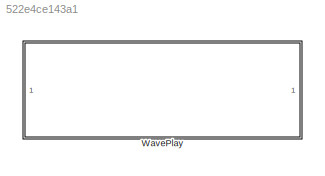
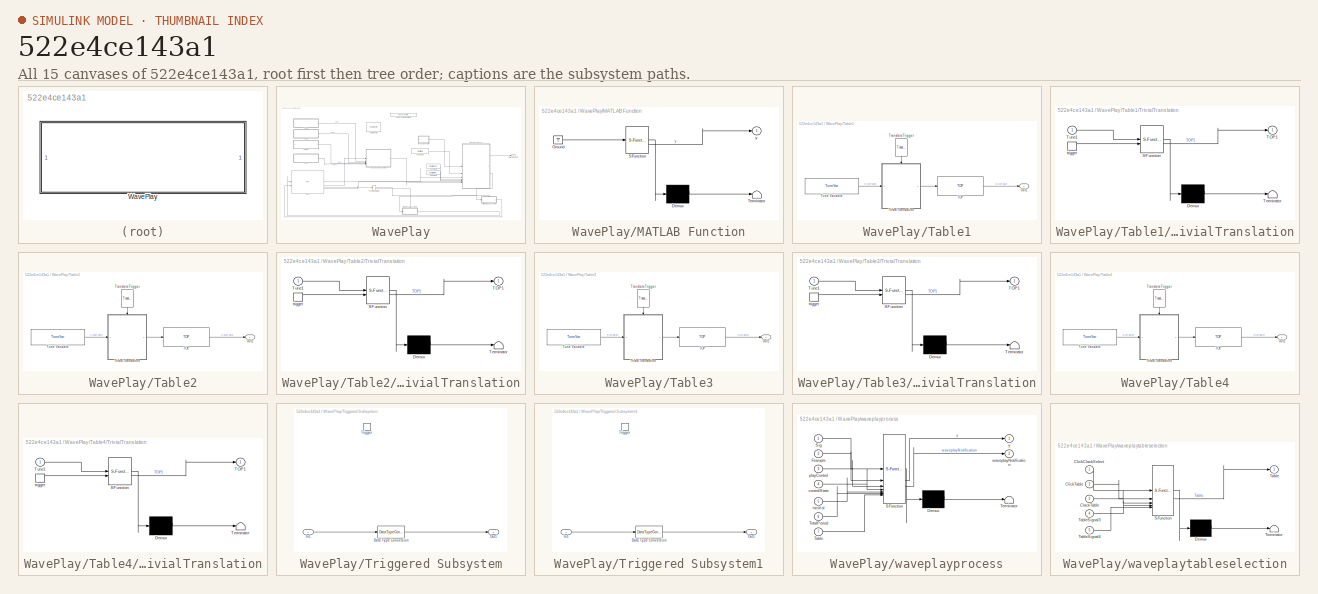
[diagram: thumbnail index - all 15 canvases of the model, root first then tree order]
MODEL slx_522e4ce143a1
KIND library
CONFIG AbsTol = auto
CONFIG EnableMultiTasking = off
CONFIG FixedStep = auto
CONFIG MaxStep = auto
CONFIG MinStep = auto
CONFIG RelTol = 1e-3
CONFIG SampleTimeConstraint = Unconstrained
CONFIG SolverName = VariableStepAuto
CONFIG StartTime = 0.0
CONFIG StopTime = 10.0
BLOCK [SubSystem] WavePlay
BLOCK [Constant] WavePlay/Constant1
  OutDataTypeStr = single
  Value = Config.ControlState
BLOCK [Constant] WavePlay/Constant2
  OutDataTypeStr = single
  Value = Config.MinVol
BLOCK [Constant] WavePlay/Constant3
  Value = Config.Fs
BLOCK [Reference] WavePlay/FeaturePath  REF=FeaturePath/FeaturePath
  SourceBlock = FeaturePath/FeaturePath
  SourceProductName = Bose Talaria
  SourceType = Talaria Feature Path
BLOCK [FunctionCallSplit] WavePlay/Function-Call Split
  IconShape = distinctive
  NumOutputPorts = 2
  OutputPortLayout = default
BLOCK [Reference] WavePlay/HandyDefaultConfigFile  REF=HandyTextFile/HandyTextFile
  SourceBlock = HandyTextFile/HandyTextFile
  SourceProductName = Bose Talaria
  SourceType = Talaria Handy Text File
BLOCK [SubSystem] WavePlay/MATLAB Function
  ErrorFcn = Stateflow.Translate.translate
  PermitHierarchicalResolution = ExplicitOnly
  SFBlockType = MATLAB Function
  TreatAsAtomicUnit = on
BLOCK [Demux] WavePlay/MATLAB Function/ Demux 
  Outputs = 1
BLOCK [Ground] WavePlay/MATLAB Function/ Ground 
BLOCK [S-Function] WavePlay/MATLAB Function/ SFunction 
  EnableBusSupport = off
  FunctionName = sf_sfun
  Parameters = frameSize
  PortCounts = [1 2]
  SFcnIsStateOwnerBlock = off
  SFunctionDeploymentMode = off
  Tag = Stateflow S-Function 3
BLOCK [Terminator] WavePlay/MATLAB Function/ Terminator 
BLOCK [Outport] WavePlay/MATLAB Function/y
BLOCK [Reference] WavePlay/RTC  REF=RTC/RTC
  SourceBlock = RTC/RTC
  SourceProductName = Bose Talaria
  SourceType = Talaria RTC Receive
BLOCK [SubSystem] WavePlay/Table1
BLOCK [Outport] WavePlay/Table1/Out1
  VectorParamsAs1DForOutWhenUnconnected = off
BLOCK [Reference] WavePlay/Table1/TOP  REF=TOP/TOP
  SourceBlock = TOP/TOP
  SourceProductName = Bose Talaria
  SourceType = Talaria Target Overlay Parameter
BLOCK [Reference] WavePlay/Table1/TranslateTrigger  REF=TuneVar/TranslateTrigger
  NameLocation = right
  SourceBlock = TuneVar/TranslateTrigger
  SourceProductName = Bose Talaria
  SourceType = Talaria Translate Trigger
BLOCK [SubSystem] WavePlay/Table1/TrivialTranslation
  ErrorFcn = Stateflow.Translate.translate
  PermitHierarchicalResolution = ExplicitOnly
  SFBlockType = MATLAB Function
  TreatAsAtomicUnit = on
BLOCK [Demux] WavePlay/Table1/TrivialTranslation/ Demux 
  Outputs = 1
BLOCK [S-Function] WavePlay/Table1/TrivialTranslation/ SFunction 
  EnableBusSupport = off
  FunctionName = sf_sfun
  PortCounts = [2 2]
  SFcnIsStateOwnerBlock = off
  SFunctionDeploymentMode = off
  Tag = Stateflow S-Function 8
BLOCK [Terminator] WavePlay/Table1/TrivialTranslation/ Terminator 
BLOCK [Outport] WavePlay/Table1/TrivialTranslation/TOP1
  VectorParamsAs1DForOutWhenUnconnected = off
BLOCK [Inport] WavePlay/Table1/TrivialTranslation/Tune1
BLOCK [TriggerPort] WavePlay/Table1/TrivialTranslation/trigger
  ShowOutputPort = on
  StatesWhenEnabling = held
  TriggerType = function-call
  VariantControl = Variant
BLOCK [Reference] WavePlay/Table1/Tune Variable  REF=TuneVar/TuneVar
  SourceBlock = TuneVar/TuneVar
  SourceProductName = Bose Talaria
  SourceType = Talaria Tune Variable
BLOCK [SubSystem] WavePlay/Table2
BLOCK [Outport] WavePlay/Table2/Out1
  VectorParamsAs1DForOutWhenUnconnected = off
BLOCK [Reference] WavePlay/Table2/TOP  REF=TOP/TOP
  SourceBlock = TOP/TOP
  SourceProductName = Bose Talaria
  SourceType = Talaria Target Overlay Parameter
BLOCK [Reference] WavePlay/Table2/TranslateTrigger  REF=TuneVar/TranslateTrigger
  NameLocation = right
  SourceBlock = TuneVar/TranslateTrigger
  SourceProductName = Bose Talaria
  SourceType = Talaria Translate Trigger
BLOCK [SubSystem] WavePlay/Table2/TrivialTranslation
  ErrorFcn = Stateflow.Translate.translate
  PermitHierarchicalResolution = ExplicitOnly
  SFBlockType = MATLAB Function
  TreatAsAtomicUnit = on
BLOCK [Demux] WavePlay/Table2/TrivialTranslation/ Demux 
  Outputs = 1
BLOCK [S-Function] WavePlay/Table2/TrivialTranslation/ SFunction 
  EnableBusSupport = off
  FunctionName = sf_sfun
  PortCounts = [2 2]
  SFcnIsStateOwnerBlock = off
  SFunctionDeploymentMode = off
  Tag = Stateflow S-Function 4
BLOCK [Terminator] WavePlay/Table2/TrivialTranslation/ Terminator 
BLOCK [Outport] WavePlay/Table2/TrivialTranslation/TOP1
  VectorParamsAs1DForOutWhenUnconnected = off
BLOCK [Inport] WavePlay/Table2/TrivialTranslation/Tune1
BLOCK [TriggerPort] WavePlay/Table2/TrivialTranslation/trigger
  ShowOutputPort = on
  StatesWhenEnabling = held
  TriggerType = function-call
  VariantControl = Variant
BLOCK [Reference] WavePlay/Table2/Tune Variable  REF=TuneVar/TuneVar
  SourceBlock = TuneVar/TuneVar
  SourceProductName = Bose Talaria
  SourceType = Talaria Tune Variable
BLOCK [SubSystem] WavePlay/Table3
BLOCK [Outport] WavePlay/Table3/Out1
  VectorParamsAs1DForOutWhenUnconnected = off
BLOCK [Reference] WavePlay/Table3/TOP  REF=TOP/TOP
  SourceBlock = TOP/TOP
  SourceProductName = Bose Talaria
  SourceType = Talaria Target Overlay Parameter
BLOCK [Reference] WavePlay/Table3/TranslateTrigger  REF=TuneVar/TranslateTrigger
  NameLocation = right
  SourceBlock = TuneVar/TranslateTrigger
  SourceProductName = Bose Talaria
  SourceType = Talaria Translate Trigger
BLOCK [SubSystem] WavePlay/Table3/TrivialTranslation
  ErrorFcn = Stateflow.Translate.translate
  PermitHierarchicalResolution = ExplicitOnly
  SFBlockType = MATLAB Function
  TreatAsAtomicUnit = on
BLOCK [Demux] WavePlay/Table3/TrivialTranslation/ Demux 
  Outputs = 1
BLOCK [S-Function] WavePlay/Table3/TrivialTranslation/ SFunction 
  EnableBusSupport = off
  FunctionName = sf_sfun
  PortCounts = [2 2]
  SFcnIsStateOwnerBlock = off
  SFunctionDeploymentMode = off
  Tag = Stateflow S-Function 5
BLOCK [Terminator] WavePlay/Table3/TrivialTranslation/ Terminator 
BLOCK [Outport] WavePlay/Table3/TrivialTranslation/TOP1
  VectorParamsAs1DForOutWhenUnconnected = off
BLOCK [Inport] WavePlay/Table3/TrivialTranslation/Tune1
BLOCK [TriggerPort] WavePlay/Table3/TrivialTranslation/trigger
  ShowOutputPort = on
  StatesWhenEnabling = held
  TriggerType = function-call
  VariantControl = Variant
BLOCK [Reference] WavePlay/Table3/Tune Variable  REF=TuneVar/TuneVar
  SourceBlock = TuneVar/TuneVar
  SourceProductName = Bose Talaria
  SourceType = Talaria Tune Variable
BLOCK [SubSystem] WavePlay/Table4
BLOCK [Outport] WavePlay/Table4/Out1
  VectorParamsAs1DForOutWhenUnconnected = off
BLOCK [Reference] WavePlay/Table4/TOP  REF=TOP/TOP
  SourceBlock = TOP/TOP
  SourceProductName = Bose Talaria
  SourceType = Talaria Target Overlay Parameter
BLOCK [Reference] WavePlay/Table4/TranslateTrigger  REF=TuneVar/TranslateTrigger
  NameLocation = right
  SourceBlock = TuneVar/TranslateTrigger
  SourceProductName = Bose Talaria
  SourceType = Talaria Translate Trigger
BLOCK [SubSystem] WavePlay/Table4/TrivialTranslation
  ErrorFcn = Stateflow.Translate.translate
  PermitHierarchicalResolution = ExplicitOnly
  SFBlockType = MATLAB Function
  TreatAsAtomicUnit = on
BLOCK [Demux] WavePlay/Table4/TrivialTranslation/ Demux 
  Outputs = 1
BLOCK [S-Function] WavePlay/Table4/TrivialTranslation/ SFunction 
  EnableBusSupport = off
  FunctionName = sf_sfun
  PortCounts = [2 2]
  SFcnIsStateOwnerBlock = off
  SFunctionDeploymentMode = off
  Tag = Stateflow S-Function 6
BLOCK [Terminator] WavePlay/Table4/TrivialTranslation/ Terminator 
BLOCK [Outport] WavePlay/Table4/TrivialTranslation/TOP1
  VectorParamsAs1DForOutWhenUnconnected = off
BLOCK [Inport] WavePlay/Table4/TrivialTranslation/Tune1
BLOCK [TriggerPort] WavePlay/Table4/TrivialTranslation/trigger
  ShowOutputPort = on
  StatesWhenEnabling = held
  TriggerType = function-call
  VariantControl = Variant
BLOCK [Reference] WavePlay/Table4/Tune Variable  REF=TuneVar/TuneVar
  SourceBlock = TuneVar/TuneVar
  SourceProductName = Bose Talaria
  SourceType = Talaria Tune Variable
BLOCK [SubSystem] WavePlay/Triggered Subsystem
  TreatAsAtomicUnit = on
BLOCK [DataTypeConversion] WavePlay/Triggered Subsystem/Data Type Conversion
  OutDataTypeStr = uint32
  RndMeth = Floor
  SaturateOnIntegerOverflow = off
BLOCK [Inport] WavePlay/Triggered Subsystem/In1
BLOCK [Outport] WavePlay/Triggered Subsystem/Out1
BLOCK [TriggerPort] WavePlay/Triggered Subsystem/Trigger
  StatesWhenEnabling = held
  TriggerType = function-call
  VariantControl = Variant
BLOCK [SubSystem] WavePlay/Triggered Subsystem1
  TreatAsAtomicUnit = on
BLOCK [DataTypeConversion] WavePlay/Triggered Subsystem1/Data Type Conversion
  OutDataTypeStr = boolean
  RndMeth = Floor
  SaturateOnIntegerOverflow = off
BLOCK [Inport] WavePlay/Triggered Subsystem1/In1
BLOCK [Outport] WavePlay/Triggered Subsystem1/Out1
BLOCK [TriggerPort] WavePlay/Triggered Subsystem1/Trigger
  StatesWhenEnabling = held
  TriggerType = function-call
  VariantControl = Variant
BLOCK [Outport] WavePlay/WavePlayOut
  VectorParamsAs1DForOutWhenUnconnected = off
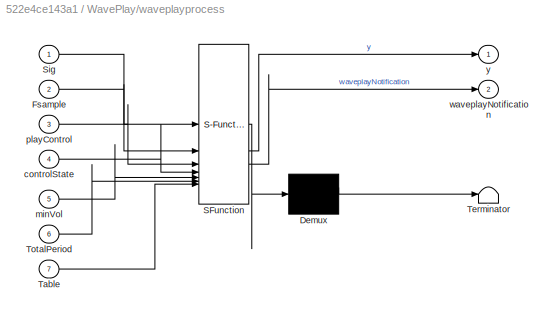
BLOCK [SubSystem] WavePlay/waveplayprocess
  ErrorFcn = Stateflow.Translate.translate
  PermitHierarchicalResolution = ExplicitOnly
  SFBlockType = MATLAB Function
  TreatAsAtomicUnit = on
BLOCK [Demux] WavePlay/waveplayprocess/ Demux 
  Outputs = 1
BLOCK [S-Function] WavePlay/waveplayprocess/ SFunction 
  EnableBusSupport = off
  FunctionName = sf_sfun
  PortCounts = [7 3]
  SFcnIsStateOwnerBlock = off
  SFunctionDeploymentMode = off
  Tag = Stateflow S-Function 2
BLOCK [Terminator] WavePlay/waveplayprocess/ Terminator 
BLOCK [Inport] WavePlay/waveplayprocess/Fsample
  Port = 2
BLOCK [Inport] WavePlay/waveplayprocess/Sig
BLOCK [Inport] WavePlay/waveplayprocess/Table
  Port = 7
BLOCK [Inport] WavePlay/waveplayprocess/TotalPeriod
  Port = 6
BLOCK [Inport] WavePlay/waveplayprocess/controlState
  Port = 4
BLOCK [Inport] WavePlay/waveplayprocess/minVol
  Port = 5
BLOCK [Inport] WavePlay/waveplayprocess/playControl
  Port = 3
BLOCK [Outport] WavePlay/waveplayprocess/waveplayNotification
  Port = 2
BLOCK [Outport] WavePlay/waveplayprocess/y
  VectorParamsAs1DForOutWhenUnconnected = off
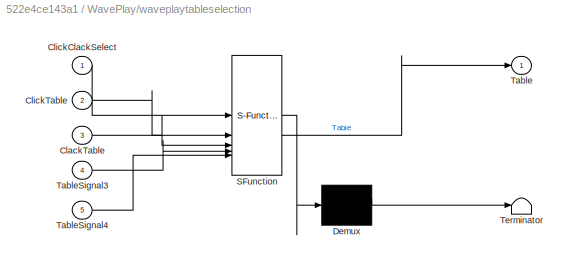
BLOCK [SubSystem] WavePlay/waveplaytableselection
  ErrorFcn = Stateflow.Translate.translate
  PermitHierarchicalResolution = ExplicitOnly
  SFBlockType = MATLAB Function
  TreatAsAtomicUnit = on
BLOCK [Demux] WavePlay/waveplaytableselection/ Demux 
  Outputs = 1
BLOCK [S-Function] WavePlay/waveplaytableselection/ SFunction 
  EnableBusSupport = off
  FunctionName = sf_sfun
  PortCounts = [5 2]
  SFcnIsStateOwnerBlock = off
  SFunctionDeploymentMode = off
  Tag = Stateflow S-Function 1
BLOCK [Terminator] WavePlay/waveplaytableselection/ Terminator 
BLOCK [Inport] WavePlay/waveplaytableselection/ClackTable
  Port = 3
BLOCK [Inport] WavePlay/waveplaytableselection/ClickClackSelect
BLOCK [Inport] WavePlay/waveplaytableselection/ClickTable
  Port = 2
BLOCK [Outport] WavePlay/waveplaytableselection/Table
BLOCK [Inport] WavePlay/waveplaytableselection/TableSignal3
  Port = 4
BLOCK [Inport] WavePlay/waveplaytableselection/TableSignal4
  Port = 5
LINE WavePlay/Constant1:1 -> WavePlay/waveplayprocess:4
LINE WavePlay/Constant2:1 -> WavePlay/waveplayprocess:5
LINE WavePlay/Constant3:1 -> WavePlay/waveplayprocess:2
LINE WavePlay/Function-Call Split:1 -> WavePlay/Triggered Subsystem:trigger
LINE WavePlay/Function-Call Split:2 -> WavePlay/Triggered Subsystem1:trigger
LINE WavePlay/MATLAB Function:1 -> WavePlay/waveplayprocess:1
LINE WavePlay/RTC:1 -> WavePlay/waveplayprocess:3
LINE WavePlay/RTC:2 -> WavePlay/waveplaytableselection:1
LINE WavePlay/RTC:3 -> WavePlay/waveplayprocess:6
LINE WavePlay/RTC:4 -> WavePlay/Function-Call Split:1
LINE WavePlay/Table1/TOP:1 -> WavePlay/Table1/Out1:1
LINE WavePlay/Table1/TranslateTrigger:1 -> WavePlay/Table1/TrivialTranslation:trigger
LINE WavePlay/Table1/TrivialTranslation:1 -> WavePlay/Table1/TOP:1
LINE WavePlay/Table1/Tune Variable:1 -> WavePlay/Table1/TrivialTranslation:1
LINE WavePlay/Table1:1 -> WavePlay/waveplaytableselection:2
LINE WavePlay/Table2/TOP:1 -> WavePlay/Table2/Out1:1
LINE WavePlay/Table2/TranslateTrigger:1 -> WavePlay/Table2/TrivialTranslation:trigger
LINE WavePlay/Table2/TrivialTranslation:1 -> WavePlay/Table2/TOP:1
LINE WavePlay/Table2/Tune Variable:1 -> WavePlay/Table2/TrivialTranslation:1
LINE WavePlay/Table2:1 -> WavePlay/waveplaytableselection:3
LINE WavePlay/Table3/TOP:1 -> WavePlay/Table3/Out1:1
LINE WavePlay/Table3/TranslateTrigger:1 -> WavePlay/Table3/TrivialTranslation:trigger
LINE WavePlay/Table3/TrivialTranslation:1 -> WavePlay/Table3/TOP:1
LINE WavePlay/Table3/Tune Variable:1 -> WavePlay/Table3/TrivialTranslation:1
LINE WavePlay/Table3:1 -> WavePlay/waveplaytableselection:4
LINE WavePlay/Table4/TOP:1 -> WavePlay/Table4/Out1:1
LINE WavePlay/Table4/TranslateTrigger:1 -> WavePlay/Table4/TrivialTranslation:trigger
LINE WavePlay/Table4/TrivialTranslation:1 -> WavePlay/Table4/TOP:1
LINE WavePlay/Table4/Tune Variable:1 -> WavePlay/Table4/TrivialTranslation:1
LINE WavePlay/Table4:1 -> WavePlay/waveplaytableselection:5
LINE WavePlay/Triggered Subsystem/Data Type Conversion:1 -> WavePlay/Triggered Subsystem/Out1:1
LINE WavePlay/Triggered Subsystem/In1:1 -> WavePlay/Triggered Subsystem/Data Type Conversion:1
LINE WavePlay/Triggered Subsystem1/Data Type Conversion:1 -> WavePlay/Triggered Subsystem1/Out1:1
LINE WavePlay/Triggered Subsystem1/In1:1 -> WavePlay/Triggered Subsystem1/Data Type Conversion:1
LINE WavePlay/Triggered Subsystem1:1 -> WavePlay/RTC:1
LINE WavePlay/Triggered Subsystem:1 -> WavePlay/RTC:2
LINE WavePlay/waveplayprocess:1 -> WavePlay/WavePlayOut:1
NET WavePlay/waveplayprocess:2 -> WavePlay/Triggered Subsystem1:1, WavePlay/Triggered Subsystem:1
LINE WavePlay/waveplaytableselection:1 -> WavePlay/waveplayprocess:7
note: NET lines group one-source signal fan-out (src -> all destinations, sorted); 1:1 wires keep LINE
CHART WavePlay/waveplaytableselection states=1 transitions=1
  STATE_LABEL 'eML_blk_kernel()'
  STATE_LABEL 'SCRIPT:\nfunction Table  = fcn(ClickClackSelect,ClickTable,ClackTable,TableSignal3,TableSignal4)\n    \n   MaxTableLen=single(1120.0);    \n   Table = single(zeros(MaxTableLen,1));\n%% Note : Maximum Table length number has been chosen based on use case of click and clack\n%         signals, typically click signal is of 1079 values, and clack signal is of\n%         1095 values, we round off to the neare...<+414ch>'
CHART WavePlay/waveplayprocess states=1 transitions=1
  STATE_LABEL 'eML_blk_kernel()'
  STATE_LABEL 'SCRIPT:\nfunction [y,waveplayNotification] = fcn(Sig,Fsample,playControl,controlState,minVol,TotalPeriod,Table)\n\n    FrmSize= single(size(Sig,1));\n    Fsamp= Fsample(1,1);\n    \n    waveplayNotification =single(0.0);\n    persistent OutStore ;\n    persistent waveplayDone;\n    persistent ctlState;\n    persistent tableIndex;\n    persistent SilencePeriodCounter;\n    Numchannels = size(Table,2);\n    tabl...<+3023ch>'
CHART WavePlay/MATLAB Function states=1 transitions=1
  STATE_LABEL 'eML_blk_kernel()'
  STATE_LABEL 'SCRIPT:\nfunction y = fcn(frameSize)\n% zero padding \ny = zeros(frameSize,1);\n'
CHART WavePlay/Table2/TrivialTranslation states=1 transitions=1
  STATE_LABEL 'eML_blk_kernel()'
  STATE_LABEL 'SCRIPT:\nfunction TOP1  = fcn(Tune1)\n%#codegen\n\n% ----- To access TuneVar maximum size, current size, and current value:\n%   Note: TuneVar signals arrive with exposed variable size information.\n%         The expressions below illustrate for the "Tune1" input argument.\n%\n%   size(Tune1.Value) : the maximum possible size of the Tune1 variable\n%\n%   Tune.Size   : the current size of *valid* data in Tu...<+938ch>'  <repeated x4 — deduplicated; at blocks: TrivialTranslation>
CHART WavePlay/Table3/TrivialTranslation states=1 transitions=1
  STATE_LABEL 'eML_blk_kernel()'
CHART WavePlay/Table4/TrivialTranslation states=1 transitions=1
  STATE_LABEL 'eML_blk_kernel()'
CHART WavePlay/Table1/TrivialTranslation states=1 transitions=1
  STATE_LABEL 'eML_blk_kernel()'
CHART  states=0 transitions=0
CHART  states=0 transitions=0
CHART  states=0 transitions=0
CHART  states=0 transitions=0
CHART  states=0 transitions=0
CHART  states=0 transitions=0
CHART  states=0 transitions=0
